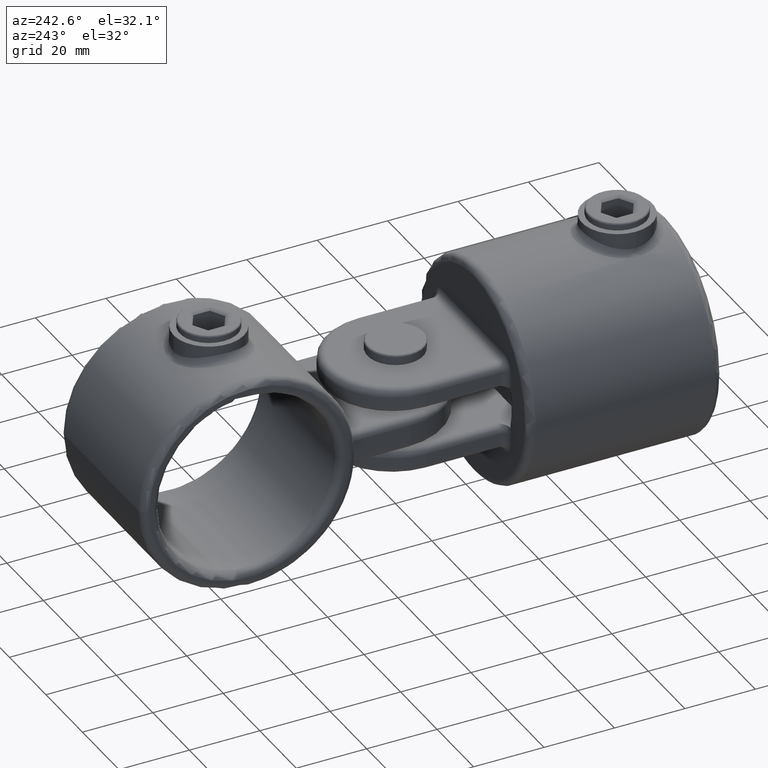
[diagram: clean part render]
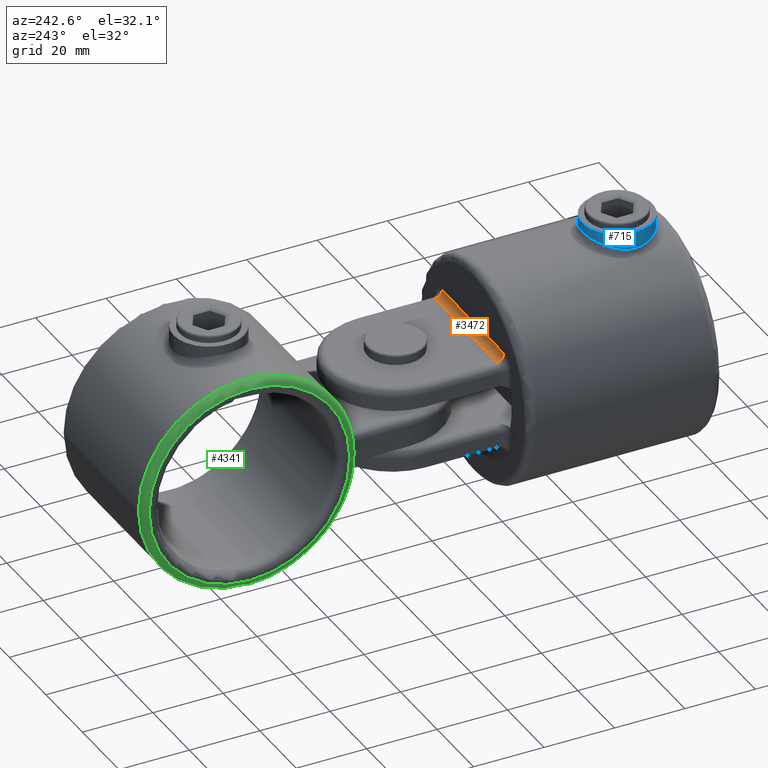
[diagram: same view with three faces highlighted in distinct colors, each labeled with its STEP entity id]
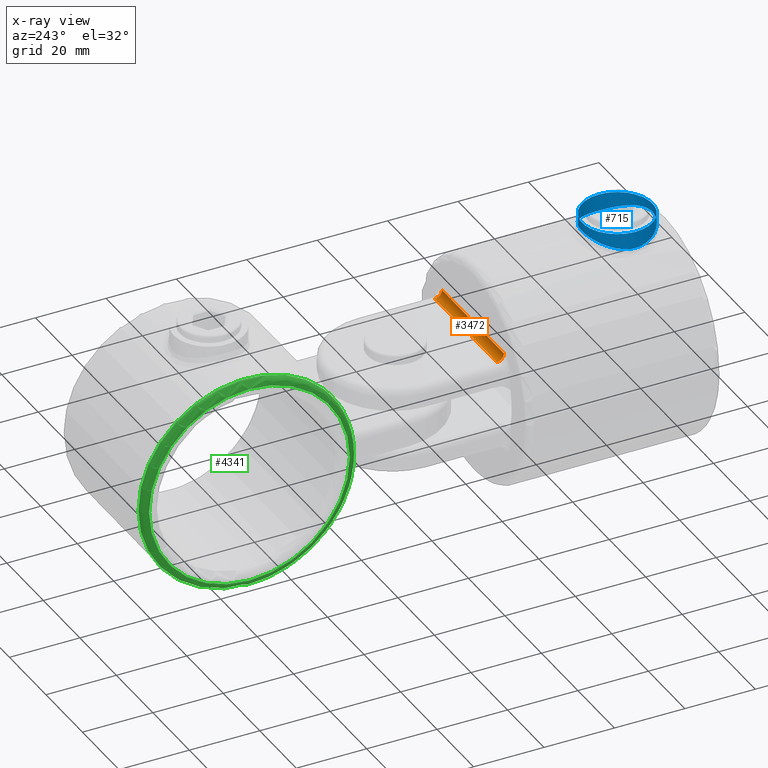
[diagram: x-ray of the same camera — body ghosted, the three highlighted faces saturated]
A machine part, auxiliary view with three faces highlighted in distinct colors.
The next image is the same camera in x-ray (body ghosted, the three faces saturated) — at least one of them is partly hidden behind the body in this view.
Their STEP definitions:

[orange] entity #3472 — the highlighted cylindrical surface (edge-blend (fillet) strip) has radius 2 mm, axis along (1, 0, 0).
#430 = AXIS2_PLACEMENT_3D ( 'NONE', #4101, #2260, #606 ) ;
#606 = DIRECTION ( 'NONE',  ( 0.000000000000000000, 0.000000000000000000, -1.000000000000000000 ) ) ;
#702 = CIRCLE ( 'NONE', #2167, 2.000000000000000000 ) ;
#968 = CARTESIAN_POINT ( 'NONE',  ( 0.000000000000000000, 55.00000000000000000, 14.50000000000000000 ) ) ;
#992 = VERTEX_POINT ( 'NONE', #2046 ) ;
#1061 = DIRECTION ( 'NONE',  ( 1.000000000000000000, -0.000000000000000000, 0.000000000000000000 ) ) ;
#1335 = DIRECTION ( 'NONE',  ( 1.000000000000000000, 0.000000000000000000, -1.734723475976806897E-15 ) ) ;
#1453 = FACE_OUTER_BOUND ( 'NONE', #3433, .T. ) ;
#1595 = CYLINDRICAL_SURFACE ( 'NONE', #430, 2.000000000000000000 ) ;
#1615 = DIRECTION ( 'NONE',  ( 1.000000000000000000, 0.000000000000000000, 0.000000000000000000 ) ) ;
#1740 = DIRECTION ( 'NONE',  ( -1.734723475976807094E-15, 0.000000000000000000, -1.000000000000000000 ) ) ;
#1854 = LINE ( 'NONE', #2253, #3186 ) ;
#1933 = VECTOR ( 'NONE', #2572, 1000.000000000000000 ) ;
#1951 = ORIENTED_EDGE ( 'NONE', *, *, #2757, .F. ) ;
#2046 = CARTESIAN_POINT ( 'NONE',  ( -17.00000000000000000, 57.00000000000000000, 12.50000000000000000 ) ) ;
#2139 = CIRCLE ( 'NONE', #3903, 2.000000000000000000 ) ;
#2167 = AXIS2_PLACEMENT_3D ( 'NONE', #2926, #1335, #1740 ) ;
#2172 = LINE ( 'NONE', #968, #1933 ) ;
#2253 = CARTESIAN_POINT ( 'NONE',  ( -19.00000000000000000, 57.00000000000000000, 12.50000000000000000 ) ) ;
#2260 = DIRECTION ( 'NONE',  ( 1.000000000000000000, -0.000000000000000000, 0.000000000000000000 ) ) ;
#2371 = VERTEX_POINT ( 'NONE', #4113 ) ;
#2408 = EDGE_CURVE ( 'NONE', #2371, #4758, #2172, .T. ) ;
#2572 = DIRECTION ( 'NONE',  ( -1.000000000000000000, 0.000000000000000000, -0.000000000000000000 ) ) ;
#2757 = EDGE_CURVE ( 'NONE', #4758, #992, #2139, .T. ) ;
#2918 = EDGE_CURVE ( 'NONE', #2371, #4452, #702, .T. ) ;
#2926 = CARTESIAN_POINT ( 'NONE',  ( 17.00000000000000711, 57.00000000000000000, 14.50000000000000000 ) ) ;
#2973 = ORIENTED_EDGE ( 'NONE', *, *, #2918, .T. ) ;
#3186 = VECTOR ( 'NONE', #1061, 1000.000000000000000 ) ;
#3433 = EDGE_LOOP ( 'NONE', ( #2973, #3656, #1951, #4940 ) ) ;
#3472 = ADVANCED_FACE ( 'NONE', ( #1453 ), #1595, .F. ) ;
#3560 = CARTESIAN_POINT ( 'NONE',  ( 17.00000000000000355, 57.00000000000000000, 12.50000000000000000 ) ) ;
#3656 = ORIENTED_EDGE ( 'NONE', *, *, #4377, .F. ) ;
#3815 = CARTESIAN_POINT ( 'NONE',  ( -17.00000000000000000, 55.00000000000000000, 14.50000000000000000 ) ) ;
#3903 = AXIS2_PLACEMENT_3D ( 'NONE', #4857, #1615, #4472 ) ;
#4101 = CARTESIAN_POINT ( 'NONE',  ( -19.00000000000000000, 57.00000000000000000, 14.50000000000000000 ) ) ;
#4113 = CARTESIAN_POINT ( 'NONE',  ( 17.00000000000000711, 55.00000000000000000, 14.50000000000000000 ) ) ;
#4377 = EDGE_CURVE ( 'NONE', #992, #4452, #1854, .T. ) ;
#4452 = VERTEX_POINT ( 'NONE', #3560 ) ;
#4472 = DIRECTION ( 'NONE',  ( 0.000000000000000000, 0.000000000000000000, -1.000000000000000000 ) ) ;
#4758 = VERTEX_POINT ( 'NONE', #3815 ) ;
#4857 = CARTESIAN_POINT ( 'NONE',  ( -17.00000000000000000, 57.00000000000000000, 14.50000000000000000 ) ) ;
#4940 = ORIENTED_EDGE ( 'NONE', *, *, #2408, .F. ) ;

[blue] entity #715 — the highlighted cylindrical surface (bore or boss wall) has radius 10 mm, axis along (-0, -0, -1).
#100 = CARTESIAN_POINT ( 'NONE',  ( -2.614533402329467737, 4.342203113726298191, 32.35044701807686351 ) ) ;
#114 = CARTESIAN_POINT ( 'NONE',  ( -3.245353187600716449, 4.535513310477721660, 32.26807114800728016 ) ) ;
#130 = CARTESIAN_POINT ( 'NONE',  ( -1.315883091347748168, 4.064847427296987448, 32.47102181399852583 ) ) ;
#142 = CARTESIAN_POINT ( 'NONE',  ( 9.984020035899424883, 13.34471602824632441, 30.21111772675156715 ) ) ;
#156 = CARTESIAN_POINT ( 'NONE',  ( 9.868872699529433135, 12.35230418400704622, 30.26563674008294313 ) ) ;
#180 = CARTESIAN_POINT ( 'NONE',  ( -6.843302424459897892, 21.29881938692922816, 31.44667997658956438 ) ) ;
#226 = CARTESIAN_POINT ( 'NONE',  ( 6.103807043906742891, 21.92777132986375932, 31.66539131183671074 ) ) ;
#500 = CARTESIAN_POINT ( 'NONE',  ( -9.739134296912128619, 11.70717094567973859, 30.32609237112129108 ) ) ;
#518 = CARTESIAN_POINT ( 'NONE',  ( 9.671286232142414008, 16.62843634803788717, 30.35770082774977041 ) ) ;
#536 = CARTESIAN_POINT ( 'NONE',  ( -7.528316750415037895, 7.386310444514425200, 31.22433172470076812 ) ) ;
#556 = CARTESIAN_POINT ( 'NONE',  ( -6.615820458410701654, 6.473555800180735176, 31.52053636002622738 ) ) ;
#587 = CARTESIAN_POINT ( 'NONE',  ( -10.00000000000000533, 14.67042085534480123, 30.20347662107793951 ) ) ;
#604 = CARTESIAN_POINT ( 'NONE',  ( 1.323011909690238852, 23.91769104178694860, 32.46363964678834435 ) ) ;
#627 = CARTESIAN_POINT ( 'NONE',  ( -5.843697447757173258, 22.12144113231292408, 31.73619776136614590 ) ) ;
#715 = ADVANCED_FACE ( 'NONE', ( #1138, #3712 ), #2516, .T. ) ;
#718 = EDGE_CURVE ( 'NONE', #1869, #1869, #3477, .T. ) ;
#757 = EDGE_LOOP ( 'NONE', ( #3948 ) ) ;
#854 = CARTESIAN_POINT ( 'NONE',  ( -10.00000000000000178, 13.99999999999999822, 30.20347662107792530 ) ) ;
#872 = DIRECTION ( 'NONE',  ( -0.000000000000000000, -0.000000000000000000, -1.000000000000000000 ) ) ;
#890 = CARTESIAN_POINT ( 'NONE',  ( -5.306170360020612264, 5.517610849896361636, 31.87187422770790945 ) ) ;
#905 = CARTESIAN_POINT ( 'NONE',  ( 1.658878112089044343, 4.133079042536122572, 32.44129353512104075 ) ) ;
#922 = CARTESIAN_POINT ( 'NONE',  ( 9.102496660580056798, 18.15334532493125508, 30.60986331209045375 ) ) ;
#941 = CARTESIAN_POINT ( 'NONE',  ( 1.332077482115696654, 4.083513171062507219, 32.46310950476503621 ) ) ;
#960 = CARTESIAN_POINT ( 'NONE',  ( 4.162126008069604310, 4.901368779502045747, 32.11604033567353866 ) ) ;
#975 = CARTESIAN_POINT ( 'NONE',  ( -6.604879153853596918, 21.51532381309690933, 31.52024382232365696 ) ) ;
#979 = DIRECTION ( 'NONE',  ( 0.000000000000000000, 0.000000000000000000, 1.000000000000000000 ) ) ;
#1016 = CARTESIAN_POINT ( 'NONE',  ( -4.459212858328937656, 22.97437877312986743, 32.06472674210432672 ) ) ;
#1034 = CARTESIAN_POINT ( 'NONE',  ( -9.933379340573587513, 15.32680092401816196, 30.23557732068112358 ) ) ;
#1138 = FACE_OUTER_BOUND ( 'NONE', #3487, .T. ) ;
#1246 = CARTESIAN_POINT ( 'NONE',  ( 0.000000000000000000, 13.99999999999999822, 34.99999999999999289 ) ) ;
#1297 = CARTESIAN_POINT ( 'NONE',  ( 9.983493821546606029, 14.66260686238623911, 30.21136826425483335 ) ) ;
#1317 = CARTESIAN_POINT ( 'NONE',  ( 6.604669757277896736, 6.484487477177232506, 31.52030810875761802 ) ) ;
#1332 = CARTESIAN_POINT ( 'NONE',  ( 8.962665931951347531, 18.44716342479838289, 30.66943414644754995 ) ) ;
#1343 = CARTESIAN_POINT ( 'NONE',  ( 9.104130772675061323, 9.850138758646739490, 30.60916573495806858 ) ) ;
#1357 = CARTESIAN_POINT ( 'NONE',  ( 9.673045341635811312, 11.37885649670039356, 30.35688723799461997 ) ) ;
#1378 = CARTESIAN_POINT ( 'NONE',  ( -0.6685315067394865807, 23.99958732815111873, 32.49981715465725074 ) ) ;
#1410 = CARTESIAN_POINT ( 'NONE',  ( -8.122269497224023027, 19.84247509188513447, 31.00489619376928374 ) ) ;
#1449 = CARTESIAN_POINT ( 'NONE',  ( -7.926598416882457698, 20.10523218298213521, 31.07796279004013584 ) ) ;
#1473 = ORIENTED_EDGE ( 'NONE', *, *, #718, .T. ) ;
#1706 = CARTESIAN_POINT ( 'NONE',  ( 6.846402141936135166, 6.703946357808736600, 31.44573203978728060 ) ) ;
#1707 = CIRCLE ( 'NONE', #4898, 10.00000000000000178 ) ;
#1725 = CARTESIAN_POINT ( 'NONE',  ( 7.535332654316970746, 7.393847871556056717, 31.22196392659375874 ) ) ;
#1736 = CARTESIAN_POINT ( 'NONE',  ( 8.483674080620842162, 19.30400983585766639, 30.86521074971415146 ) ) ;
#1755 = CARTESIAN_POINT ( 'NONE',  ( 4.460125296728114641, 5.043808137761853772, 32.05817500894819716 ) ) ;
#1777 = CARTESIAN_POINT ( 'NONE',  ( -4.155701816738133658, 4.898536392276135132, 32.11720217377955322 ) ) ;
#1825 = CARTESIAN_POINT ( 'NONE',  ( -7.298404168031843220, 20.84374525502578734, 31.29897703565869804 ) ) ;
#1840 = CARTESIAN_POINT ( 'NONE',  ( 5.843744440065966828, 22.12129484220157494, 31.73615485409790082 ) ) ;
#1869 = VERTEX_POINT ( 'NONE', #854 ) ;
#2100 = CARTESIAN_POINT ( 'NONE',  ( 7.944190614601239986, 7.891963555208854508, 31.07374604932628515 ) ) ;
#2111 = CARTESIAN_POINT ( 'NONE',  ( -10.00000000000000178, 13.32957914465518456, 30.20347662107792175 ) ) ;
#2132 = CARTESIAN_POINT ( 'NONE',  ( 7.941245788260929750, 20.11208641224245497, 31.07485423606355113 ) ) ;
#2148 = CARTESIAN_POINT ( 'NONE',  ( -3.553458559826015772, 4.646956128833685362, 32.22111563649053068 ) ) ;
#2159 = CARTESIAN_POINT ( 'NONE',  ( -0.6599121890357914078, 3.999829336728657925, 32.50007561695498026 ) ) ;
#2182 = CARTESIAN_POINT ( 'NONE',  ( 6.606596212816284286, 21.51391410442366947, 31.51974724648361814 ) ) ;
#2202 = CARTESIAN_POINT ( 'NONE',  ( 5.037571291151973440, 22.66267807699490433, 31.93965076670681569 ) ) ;
#2217 = CARTESIAN_POINT ( 'NONE',  ( -9.464465942595168713, 17.24549678703396083, 30.45120409952757967 ) ) ;
#2258 = CARTESIAN_POINT ( 'NONE',  ( -9.738914675341320049, 16.29382811046269808, 30.32619432085260414 ) ) ;
#2512 = CARTESIAN_POINT ( 'NONE',  ( -6.118316857978434165, 6.063270373837529092, 31.66679886347433026 ) ) ;
#2516 = CYLINDRICAL_SURFACE ( 'NONE', #3794, 10.00000000000000178 ) ;
#2531 = CARTESIAN_POINT ( 'NONE',  ( -8.973349204205849361, 9.538142280271097562, 30.66600392576714285 ) ) ;
#2546 = CARTESIAN_POINT ( 'NONE',  ( 6.847880192300171309, 21.29457581640100017, 31.44525236267082491 ) ) ;
#2559 = CARTESIAN_POINT ( 'NONE',  ( 5.846492498496490775, 5.880716970900487617, 31.73541619692676363 ) ) ;
#2584 = CARTESIAN_POINT ( 'NONE',  ( 5.033486903033499438, 5.353029436113183159, 31.93568963022464047 ) ) ;
#2600 = CARTESIAN_POINT ( 'NONE',  ( 1.649941697202754964, 23.86843297616704618, 32.44195629821442850 ) ) ;
#2666 = CARTESIAN_POINT ( 'NONE',  ( -10.00000000000000355, 13.99999999999999467, 30.20347662107793241 ) ) ;
#2924 = CARTESIAN_POINT ( 'NONE',  ( -7.945799578544582076, 7.894045453117306543, 31.07315217005147190 ) ) ;
#2933 = EDGE_CURVE ( 'NONE', #4689, #4689, #1707, .T. ) ;
#2940 = CARTESIAN_POINT ( 'NONE',  ( 9.480999725888500151, 10.75395225057885540, 30.44523232052593187 ) ) ;
#2957 = CARTESIAN_POINT ( 'NONE',  ( -10.00000000000000355, 13.99999999999999467, 30.20347662107793241 ) ) ;
#2990 = CARTESIAN_POINT ( 'NONE',  ( 9.918639406753971599, 12.68446000453588596, 30.24211355031132697 ) ) ;
#3003 = CARTESIAN_POINT ( 'NONE',  ( -9.351785023166955924, 17.55682017554366325, 30.50146622436773924 ) ) ;
#3026 = CARTESIAN_POINT ( 'NONE',  ( -1.323432631844460028, 23.93402501100975499, 32.47052500719338752 ) ) ;
#3044 = CARTESIAN_POINT ( 'NONE',  ( 2.617710640622799456, 23.67371175087662039, 32.35714969931480312 ) ) ;
#3048 = DIRECTION ( 'NONE',  ( 1.000000000000000000, 0.000000000000000000, 0.000000000000000000 ) ) ;
#3062 = CARTESIAN_POINT ( 'NONE',  ( -9.658212025451899052, 16.61310264716253826, 30.36347660962142569 ) ) ;
#3304 = CARTESIAN_POINT ( 'NONE',  ( 10.00013054100390342, 13.67451352065311276, 30.20341438353134578 ) ) ;
#3317 = CARTESIAN_POINT ( 'NONE',  ( 0.6686644656100368955, 4.016812669328450269, 32.49253478877115953 ) ) ;
#3337 = CARTESIAN_POINT ( 'NONE',  ( 9.478367709710596500, 17.25321947238622045, 30.44640338974316762 ) ) ;
#3353 = CARTESIAN_POINT ( 'NONE',  ( -8.666217386801367439, 8.968589852168840082, 30.79460102152647494 ) ) ;
#3366 = CARTESIAN_POINT ( 'NONE',  ( -9.933270860256049772, 12.67284600769582070, 30.23562708968100310 ) ) ;
#3387 = CARTESIAN_POINT ( 'NONE',  ( -3.250221835099377454, 23.46282864703511351, 32.26736992313716001 ) ) ;
#3419 = CARTESIAN_POINT ( 'NONE',  ( -2.294821116327440791, 23.73873080830646032, 32.38546657807028595 ) ) ;
#3455 = CARTESIAN_POINT ( 'NONE',  ( -2.618792426572118970, 23.65665543586565889, 32.34995536272301564 ) ) ;
#3477 = B_SPLINE_CURVE_WITH_KNOTS ( 'NONE', 3,
 ( #2957, #2111, #3366, #500, #4116, #4922, #4909, #2531, #3353, #2924, #536, #556, #2512, #890, #4534, #3736, #1777, #2148, #114, #100, #4161, #130, #2159, #4151, #3317, #941, #905, #3778, #4565, #960, #1755, #2584, #4962, #2559, #3727, #1317, #1706, #1725, #2100, #3752, #4980, #4516, #1343, #2940, #1357, #156, #2990, #142, #3304, #3709, #1297, #4102, #4496, #518, #3337, #922, #1332, #4132, #1736, #2132, #4939, #2546, #2182, #226, #1840, #2202, #4213, #4993, #3044, #2600, #604, #4618, #3809, #1378, #3026, #3419, #3455, #3387, #4640, #1016, #3827, #627, #4601, #975, #180, #1825, #5062, #1449, #1410, #5047, #3795, #3003, #2217, #3062, #2258, #1034, #587, #2666 ),
 .UNSPECIFIED., .T., .F.,
 ( 4, 2, 2, 2, 2, 2, 2, 2, 2, 2, 2, 2, 2, 2, 2, 2, 2, 2, 2, 2, 2, 2, 2, 2, 2, 2, 2, 2, 2, 2, 2, 2, 2, 2, 2, 2, 2, 2, 2, 2, 2, 2, 2, 2, 2, 2, 2, 2, 4 ),
 ( 0.000000000000000000, 0.002011262444372475654, 0.003016893666558712397, 0.004022524888744949574, 0.006033787333117423060, 0.008045049777489897413, 0.01005631222186236656, 0.01106194344404860287, 0.01206757466623483745, 0.01307320588842107549, 0.01407883711060731007, 0.01609009955497978095, 0.01709573077716601899, 0.01810136199935225357, 0.02011262444372472619, 0.02111825566591095729, 0.02212388688809719534, 0.02312951811028342991, 0.02413514933246966102, 0.02614641177684214057, 0.02715204299902837862, 0.02815767422121461319, 0.03016893666558709275, 0.03117456788777332732, 0.03218019910995956190, 0.03318583033214580341, 0.03419146155433204493, 0.03620272399870453489, 0.03720835522089077640, 0.03821398644307701098, 0.04022524888744948707, 0.04123088010963572164, 0.04223651133182196316, 0.04424777377619443230, 0.04625903622056690145, 0.04726466744275312909, 0.04827029866493935673, 0.05028156110931181894, 0.05128719233149806045, 0.05229282355368428808, 0.05430408599805675030, 0.05530971722024297793, 0.05631534844242920557, 0.05732097966461544014, 0.05832661088680166778, 0.06033787333117414386, 0.06134350455336037844, 0.06234913577554661301, 0.06436039821991906829 ),
 .UNSPECIFIED. ) ;
#3487 = EDGE_LOOP ( 'NONE', ( #1473 ) ) ;
#3709 = CARTESIAN_POINT ( 'NONE',  ( 9.999867869990776370, 14.33345894512336827, 30.20353961620864425 ) ) ;
#3712 = FACE_OUTER_BOUND ( 'NONE', #757, .T. ) ;
#3727 = CARTESIAN_POINT ( 'NONE',  ( 6.105264761090174019, 6.073441271245278550, 31.66496622740294598 ) ) ;
#3736 = CARTESIAN_POINT ( 'NONE',  ( -4.449838395196040075, 5.038675583034889272, 32.06024098481591977 ) ) ;
#3752 = CARTESIAN_POINT ( 'NONE',  ( 8.484634890148438302, 8.697591187594104767, 30.86482432376003260 ) ) ;
#3778 = CARTESIAN_POINT ( 'NONE',  ( 2.625265630891330471, 4.328391888951832911, 32.35624214613344662 ) ) ;
#3794 = AXIS2_PLACEMENT_3D ( 'NONE', #1246, #872, #4086 ) ;
#3795 = CARTESIAN_POINT ( 'NONE',  ( -8.973411527865271964, 18.46153528219960904, 30.66597152068957399 ) ) ;
#3809 = CARTESIAN_POINT ( 'NONE',  ( 0.3249633927166299951, 24.00020345146036860, 32.50009014463202561 ) ) ;
#3827 = CARTESIAN_POINT ( 'NONE',  ( -5.030366446884893428, 22.66728545256508909, 31.94140691803601939 ) ) ;
#3948 = ORIENTED_EDGE ( 'NONE', *, *, #2933, .F. ) ;
#4086 = DIRECTION ( 'NONE',  ( -1.000000000000000000, 0.000000000000000000, 0.000000000000000000 ) ) ;
#4102 = CARTESIAN_POINT ( 'NONE',  ( 9.917970476947557401, 15.32024935422714407, 30.24242959028113731 ) ) ;
#4116 = CARTESIAN_POINT ( 'NONE',  ( -9.658621241103960031, 11.38851661924377723, 30.36328746689355285 ) ) ;
#4132 = CARTESIAN_POINT ( 'NONE',  ( 8.653424127229499163, 19.02243904979524558, 30.79705797957696589 ) ) ;
#4151 = CARTESIAN_POINT ( 'NONE',  ( 0.3338277496502939923, 4.000085831292789607, 32.49996197013596344 ) ) ;
#4161 = CARTESIAN_POINT ( 'NONE',  ( -2.290138617685125944, 4.260135198575246918, 32.38595766013258270 ) ) ;
#4200 = CARTESIAN_POINT ( 'NONE',  ( 0.000000000000000000, 13.99999999999999822, 34.99999999999999289 ) ) ;
#4213 = CARTESIAN_POINT ( 'NONE',  ( 4.465765506393736040, 22.97180068253390672, 32.06365324783307358 ) ) ;
#4496 = CARTESIAN_POINT ( 'NONE',  ( 9.868481797298171543, 15.65035777070406375, 30.26582191596073201 ) ) ;
#4516 = CARTESIAN_POINT ( 'NONE',  ( 8.963056972922821330, 9.553528038484802920, 30.66927476563835242 ) ) ;
#4534 = CARTESIAN_POINT ( 'NONE',  ( -5.024369124747138926, 5.347710595007606038, 31.93776464263652670 ) ) ;
#4565 = CARTESIAN_POINT ( 'NONE',  ( 3.250956707861509809, 4.520294706147876873, 32.27341628045347477 ) ) ;
#4601 = CARTESIAN_POINT ( 'NONE',  ( -6.105658380059731272, 21.92625109359510915, 31.66485583940459492 ) ) ;
#4618 = CARTESIAN_POINT ( 'NONE',  ( 0.6600934566607323806, 23.98374843142580204, 32.49278345418428415 ) ) ;
#4640 = CARTESIAN_POINT ( 'NONE',  ( -3.558060745436037120, 23.35126821087170867, 32.22037425587959802 ) ) ;
#4652 = CARTESIAN_POINT ( 'NONE',  ( 10.00000000000000178, 13.99999999999999822, 34.99999999999999289 ) ) ;
#4689 = VERTEX_POINT ( 'NONE', #4652 ) ;
#4898 = AXIS2_PLACEMENT_3D ( 'NONE', #4200, #979, #3048 ) ;
#4909 = CARTESIAN_POINT ( 'NONE',  ( -9.352407703590190025, 10.44475560491848398, 30.50119284130386177 ) ) ;
#4922 = CARTESIAN_POINT ( 'NONE',  ( -9.465525858780106105, 10.75768139384241628, 30.45072799575186195 ) ) ;
#4939 = CARTESIAN_POINT ( 'NONE',  ( 7.532483598646242839, 20.60900058355295528, 31.22288851195675363 ) ) ;
#4962 = CARTESIAN_POINT ( 'NONE',  ( 5.310602904314186468, 5.520511322356235873, 31.87077595390486806 ) ) ;
#4980 = CARTESIAN_POINT ( 'NONE',  ( 8.652540629996465782, 8.975953438645143834, 30.79742059349508665 ) ) ;
#4993 = CARTESIAN_POINT ( 'NONE',  ( 3.246930583856763253, 23.48122939437853063, 32.27405435344837059 ) ) ;
#5047 = CARTESIAN_POINT ( 'NONE',  ( -8.665970916273893820, 19.03230126459363802, 30.79474281534144353 ) ) ;
#5062 = CARTESIAN_POINT ( 'NONE',  ( -7.515082426023007578, 20.60517665174252144, 31.22483385308026982 ) ) ;

[green] entity #4341 — the highlighted toroidal blend (fillet) surface has major radius 28.5 mm and minor (blend) radius 2 mm.
#69 = CARTESIAN_POINT ( 'NONE',  ( 0.000000000000000000, -20.24999999999999645, 0.000000000000000000 ) ) ;
#98 = EDGE_CURVE ( 'NONE', #2302, #2302, #3753, .T. ) ;
#117 = EDGE_LOOP ( 'NONE', ( #1580 ) ) ;
#155 = EDGE_LOOP ( 'NONE', ( #644 ) ) ;
#215 = CARTESIAN_POINT ( 'NONE',  ( 0.000000000000000000, -20.24999999999999645, 0.000000000000000000 ) ) ;
#434 = CARTESIAN_POINT ( 'NONE',  ( 0.000000000000000000, -20.24999999999999645, 30.50000000000000000 ) ) ;
#644 = ORIENTED_EDGE ( 'NONE', *, *, #3868, .F. ) ;
#1017 = CARTESIAN_POINT ( 'NONE',  ( 0.000000000000000000, -22.25000000000000000, 0.000000000000000000 ) ) ;
#1170 = FACE_OUTER_BOUND ( 'NONE', #155, .T. ) ;
#1580 = ORIENTED_EDGE ( 'NONE', *, *, #98, .F. ) ;
#1617 = TOROIDAL_SURFACE ( 'NONE', #2155, 28.49999999999999645, 2.000000000000000000 ) ;
#1887 = CIRCLE ( 'NONE', #4166, 28.49999999999999645 ) ;
#2155 = AXIS2_PLACEMENT_3D ( 'NONE', #69, #4529, #4932 ) ;
#2302 = VERTEX_POINT ( 'NONE', #434 ) ;
#2589 = DIRECTION ( 'NONE',  ( 0.000000000000000000, 0.000000000000000000, 1.000000000000000000 ) ) ;
#3057 = CARTESIAN_POINT ( 'NONE',  ( 0.000000000000000000, -22.25000000000000000, 28.49999999999999645 ) ) ;
#3078 = DIRECTION ( 'NONE',  ( -0.000000000000000000, -1.000000000000000000, -0.000000000000000000 ) ) ;
#3753 = CIRCLE ( 'NONE', #4889, 30.50000000000000000 ) ;
#3799 = DIRECTION ( 'NONE',  ( 0.000000000000000000, 1.000000000000000000, 0.000000000000000000 ) ) ;
#3828 = DIRECTION ( 'NONE',  ( 0.000000000000000000, 0.000000000000000000, 1.000000000000000000 ) ) ;
#3868 = EDGE_CURVE ( 'NONE', #4945, #4945, #1887, .T. ) ;
#4166 = AXIS2_PLACEMENT_3D ( 'NONE', #1017, #3078, #3828 ) ;
#4341 = ADVANCED_FACE ( 'NONE', ( #1170, #5054 ), #1617, .T. ) ;
#4529 = DIRECTION ( 'NONE',  ( 0.000000000000000000, 1.000000000000000000, 0.000000000000000000 ) ) ;
#4889 = AXIS2_PLACEMENT_3D ( 'NONE', #215, #3799, #2589 ) ;
#4932 = DIRECTION ( 'NONE',  ( 0.000000000000000000, 0.000000000000000000, 1.000000000000000000 ) ) ;
#4945 = VERTEX_POINT ( 'NONE', #3057 ) ;
#5054 = FACE_OUTER_BOUND ( 'NONE', #117, .T. ) ;